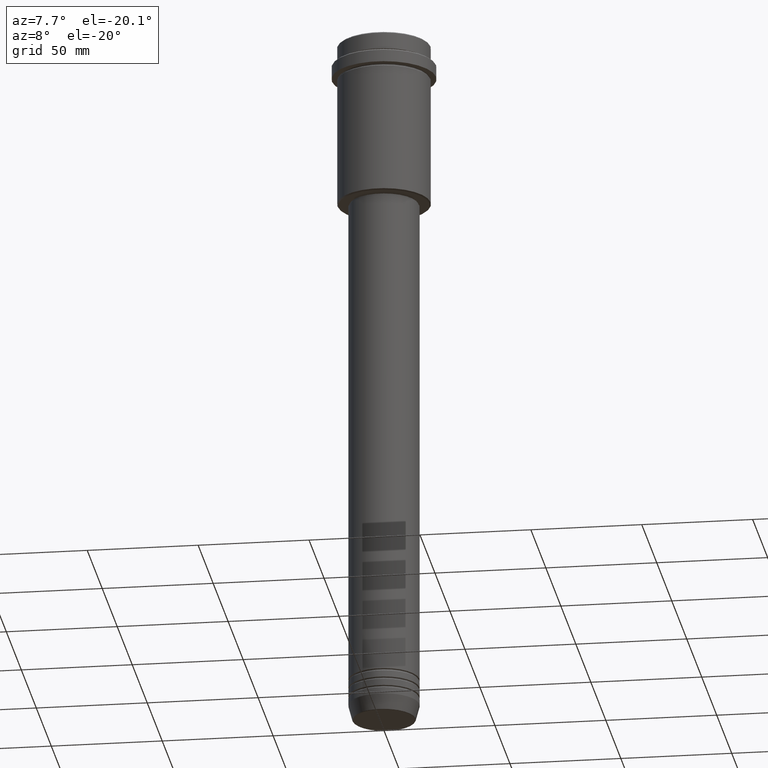
[diagram: clean part render]
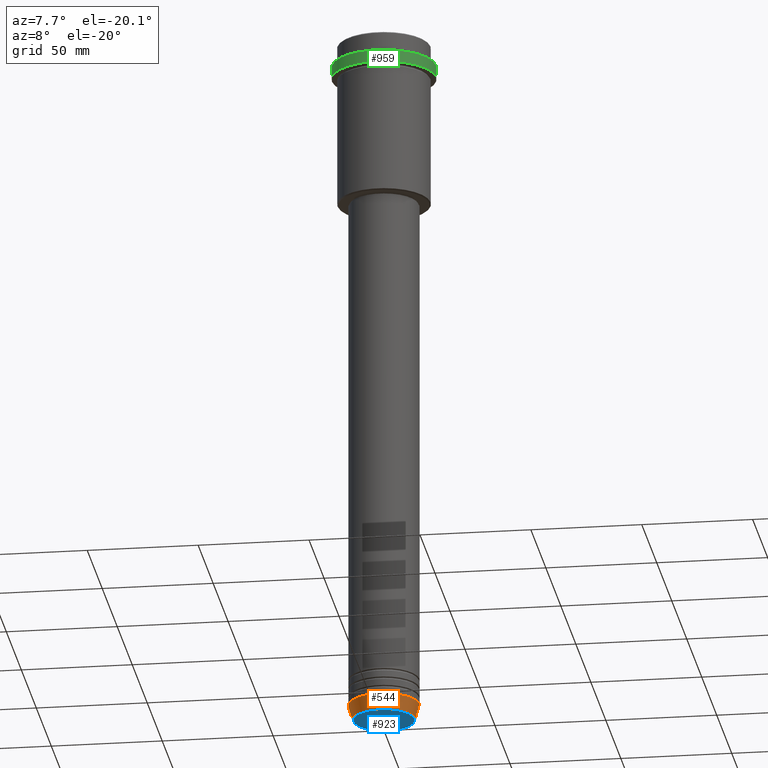
[diagram: same view with three faces highlighted in distinct colors, each labeled with its STEP entity id]
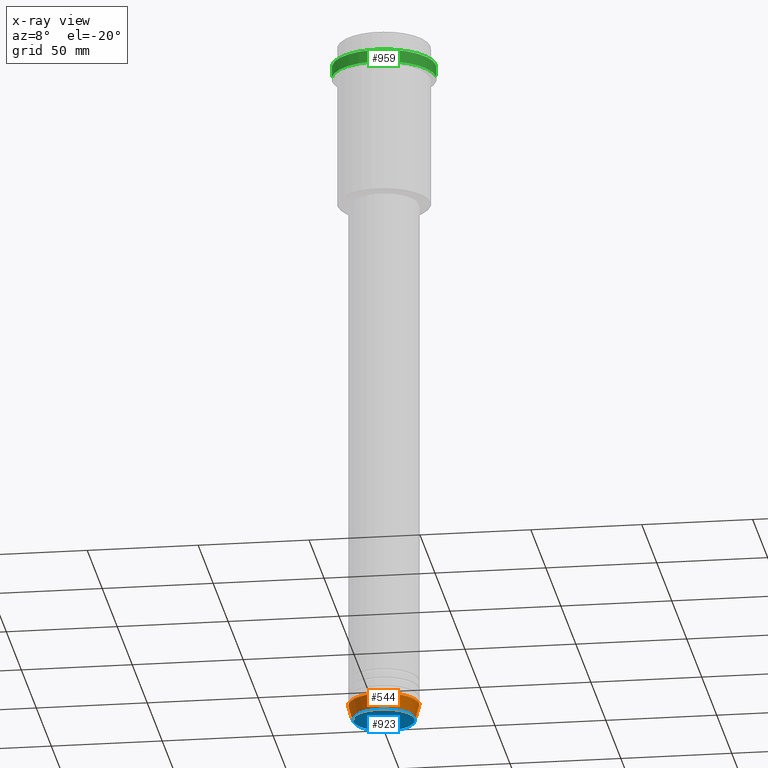
[diagram: x-ray of the same camera — body ghosted, the three highlighted faces saturated]
A machine part, auxiliary view with three faces highlighted in distinct colors.
The next image is the same camera in x-ray (body ghosted, the three faces saturated) — at least one of them is partly hidden behind the body in this view.
Their STEP definitions:

[orange] entity #544 — the highlighted conical surface has half-angle 15 deg.
#44 = EDGE_CURVE ( 'NONE', #805, #168, #133, .T. ) ;
#78 = CARTESIAN_POINT ( 'NONE',  ( 0.000000000000000000, 0.000000000000000000, -313.0000000000000000 ) ) ;
#115 = ORIENTED_EDGE ( 'NONE', *, *, #44, .F. ) ;
#131 = CARTESIAN_POINT ( 'NONE',  ( 16.00000000000000000, 0.000000000000000000, -313.0000000000000000 ) ) ;
#133 = LINE ( 'NONE', #1348, #460 ) ;
#157 = DIRECTION ( 'NONE',  ( 1.000000000000000000, 0.000000000000000000, 0.000000000000000000 ) ) ;
#168 = VERTEX_POINT ( 'NONE', #810 ) ;
#212 = CONICAL_SURFACE ( 'NONE', #347, 16.00000000000000000, 0.2617993877991500740 ) ;
#273 = VERTEX_POINT ( 'NONE', #131 ) ;
#347 = AXIS2_PLACEMENT_3D ( 'NONE', #78, #1416, #412 ) ;
#356 = CARTESIAN_POINT ( 'NONE',  ( 0.000000000000000000, 0.000000000000000000, -313.0000000000000000 ) ) ;
#381 = DIRECTION ( 'NONE',  ( -0.000000000000000000, -0.000000000000000000, 1.000000000000000000 ) ) ;
#389 = EDGE_CURVE ( 'NONE', #168, #273, #417, .T. ) ;
#412 = DIRECTION ( 'NONE',  ( 1.000000000000000000, 0.000000000000000000, 0.000000000000000000 ) ) ;
#417 = CIRCLE ( 'NONE', #517, 16.00000000000000000 ) ;
#429 = CARTESIAN_POINT ( 'NONE',  ( 0.000000000000000000, 0.000000000000000000, -319.6294095225512706 ) ) ;
#460 = VECTOR ( 'NONE', #1244, 1000.000000000000000 ) ;
#467 = ORIENTED_EDGE ( 'NONE', *, *, #896, .T. ) ;
#517 = AXIS2_PLACEMENT_3D ( 'NONE', #356, #381, #157 ) ;
#544 = ADVANCED_FACE ( 'NONE', ( #1184 ), #212, .T. ) ;
#653 = EDGE_LOOP ( 'NONE', ( #115, #467, #852, #915 ) ) ;
#674 = DIRECTION ( 'NONE',  ( 1.000000000000000000, 0.000000000000000000, 0.000000000000000000 ) ) ;
#753 = VERTEX_POINT ( 'NONE', #1280 ) ;
#805 = VERTEX_POINT ( 'NONE', #1052 ) ;
#810 = CARTESIAN_POINT ( 'NONE',  ( -16.00000000000000000, 1.959434878635765131E-15, -313.0000000000000000 ) ) ;
#846 = DIRECTION ( 'NONE',  ( 0.2588190451025213501, 0.000000000000000000, 0.9659258262890680902 ) ) ;
#851 = CARTESIAN_POINT ( 'NONE',  ( 16.00000000000000000, 0.000000000000000000, -313.0000000000000000 ) ) ;
#852 = ORIENTED_EDGE ( 'NONE', *, *, #1376, .T. ) ;
#896 = EDGE_CURVE ( 'NONE', #805, #753, #1406, .T. ) ;
#915 = ORIENTED_EDGE ( 'NONE', *, *, #389, .F. ) ;
#1052 = CARTESIAN_POINT ( 'NONE',  ( -14.22365507213718772, 1.850665122131323337E-15, -319.6294095225512706 ) ) ;
#1064 = AXIS2_PLACEMENT_3D ( 'NONE', #429, #1199, #674 ) ;
#1184 = FACE_OUTER_BOUND ( 'NONE', #653, .T. ) ;
#1199 = DIRECTION ( 'NONE',  ( -0.000000000000000000, -0.000000000000000000, 1.000000000000000000 ) ) ;
#1244 = DIRECTION ( 'NONE',  ( -0.2588190451025213501, 3.169619151431772337E-17, 0.9659258262890680902 ) ) ;
#1280 = CARTESIAN_POINT ( 'NONE',  ( 14.22365507213718772, 0.000000000000000000, -319.6294095225512706 ) ) ;
#1318 = VECTOR ( 'NONE', #846, 1000.000000000000000 ) ;
#1348 = CARTESIAN_POINT ( 'NONE',  ( -16.00000000000000000, 1.959434878635765131E-15, -313.0000000000000000 ) ) ;
#1376 = EDGE_CURVE ( 'NONE', #753, #273, #1388, .T. ) ;
#1388 = LINE ( 'NONE', #851, #1318 ) ;
#1406 = CIRCLE ( 'NONE', #1064, 14.22365507213718772 ) ;
#1416 = DIRECTION ( 'NONE',  ( -0.000000000000000000, -0.000000000000000000, 1.000000000000000000 ) ) ;

[blue] entity #923 — the highlighted planar face has unit normal (0, -0, 1).
#57 = AXIS2_PLACEMENT_3D ( 'NONE', #762, #1380, #209 ) ;
#65 = DIRECTION ( 'NONE',  ( 0.000000000000000000, 0.000000000000000000, -1.000000000000000000 ) ) ;
#77 = PLANE ( 'NONE',  #421 ) ;
#109 = CARTESIAN_POINT ( 'NONE',  ( 0.000000000000000000, 0.000000000000000000, -320.0000000000000000 ) ) ;
#209 = DIRECTION ( 'NONE',  ( 1.000000000000000000, 0.000000000000000000, 0.000000000000000000 ) ) ;
#228 = ORIENTED_EDGE ( 'NONE', *, *, #1262, .T. ) ;
#289 = EDGE_LOOP ( 'NONE', ( #496, #228 ) ) ;
#421 = AXIS2_PLACEMENT_3D ( 'NONE', #109, #883, #447 ) ;
#447 = DIRECTION ( 'NONE',  ( 1.000000000000000000, 0.000000000000000000, 0.000000000000000000 ) ) ;
#496 = ORIENTED_EDGE ( 'NONE', *, *, #1350, .T. ) ;
#762 = CARTESIAN_POINT ( 'NONE',  ( 0.000000000000000000, 0.000000000000000000, -320.0000000000000000 ) ) ;
#883 = DIRECTION ( 'NONE',  ( 0.000000000000000000, -0.000000000000000000, 1.000000000000000000 ) ) ;
#884 = VERTEX_POINT ( 'NONE', #900 ) ;
#900 = CARTESIAN_POINT ( 'NONE',  ( -13.74069215899265828, 1.712322416342415986E-15, -320.0000000000000000 ) ) ;
#911 = CIRCLE ( 'NONE', #57, 13.74069215899265828 ) ;
#923 = ADVANCED_FACE ( 'NONE', ( #1298 ), #77, .F. ) ;
#945 = CARTESIAN_POINT ( 'NONE',  ( 13.74069215899265828, 0.000000000000000000, -320.0000000000000000 ) ) ;
#1058 = CARTESIAN_POINT ( 'NONE',  ( 0.000000000000000000, 0.000000000000000000, -320.0000000000000000 ) ) ;
#1113 = VERTEX_POINT ( 'NONE', #945 ) ;
#1165 = DIRECTION ( 'NONE',  ( 1.000000000000000000, 0.000000000000000000, 0.000000000000000000 ) ) ;
#1262 = EDGE_CURVE ( 'NONE', #884, #1113, #1361, .T. ) ;
#1298 = FACE_OUTER_BOUND ( 'NONE', #289, .T. ) ;
#1350 = EDGE_CURVE ( 'NONE', #1113, #884, #911, .T. ) ;
#1361 = CIRCLE ( 'NONE', #1409, 13.74069215899265828 ) ;
#1380 = DIRECTION ( 'NONE',  ( 0.000000000000000000, 0.000000000000000000, -1.000000000000000000 ) ) ;
#1409 = AXIS2_PLACEMENT_3D ( 'NONE', #1058, #65, #1165 ) ;

[green] entity #959 — the highlighted cylindrical surface (partial cylindrical patch) has radius 23.5 mm, axis along (-0, -0, 1).
#3 = CARTESIAN_POINT ( 'NONE',  ( 0.000000000000000000, 0.000000000000000000, -15.00000000000000000 ) ) ;
#46 = CARTESIAN_POINT ( 'NONE',  ( 0.000000000000000000, 0.000000000000000000, -9.499999999999971578 ) ) ;
#70 = VECTOR ( 'NONE', #827, 1000.000000000000000 ) ;
#101 = ORIENTED_EDGE ( 'NONE', *, *, #1205, .T. ) ;
#252 = DIRECTION ( 'NONE',  ( 1.000000000000000000, 0.000000000000000000, 0.000000000000000000 ) ) ;
#286 = AXIS2_PLACEMENT_3D ( 'NONE', #3, #1183, #983 ) ;
#379 = CIRCLE ( 'NONE', #1025, 23.50000000000000000 ) ;
#402 = CIRCLE ( 'NONE', #286, 23.50000000000000355 ) ;
#408 = EDGE_CURVE ( 'NONE', #941, #1279, #1039, .T. ) ;
#413 = CARTESIAN_POINT ( 'NONE',  ( 23.50000000000000000, 0.000000000000000000, -9.499999999999971578 ) ) ;
#502 = ORIENTED_EDGE ( 'NONE', *, *, #408, .F. ) ;
#519 = EDGE_CURVE ( 'NONE', #950, #628, #944, .T. ) ;
#620 = CARTESIAN_POINT ( 'NONE',  ( -23.50000000000000711, 2.877919977996281109E-15, -15.00000000000000000 ) ) ;
#628 = VERTEX_POINT ( 'NONE', #413 ) ;
#733 = DIRECTION ( 'NONE',  ( -0.000000000000000000, -0.000000000000000000, 1.000000000000000000 ) ) ;
#793 = AXIS2_PLACEMENT_3D ( 'NONE', #1213, #1209, #1370 ) ;
#807 = DIRECTION ( 'NONE',  ( 0.000000000000000000, 0.000000000000000000, -1.000000000000000000 ) ) ;
#827 = DIRECTION ( 'NONE',  ( -0.000000000000000000, -0.000000000000000000, 1.000000000000000000 ) ) ;
#853 = CYLINDRICAL_SURFACE ( 'NONE', #793, 23.50000000000000000 ) ;
#927 = CARTESIAN_POINT ( 'NONE',  ( 23.50000000000000355, 0.000000000000000000, -15.00000000000000000 ) ) ;
#941 = VERTEX_POINT ( 'NONE', #620 ) ;
#944 = LINE ( 'NONE', #969, #1332 ) ;
#950 = VERTEX_POINT ( 'NONE', #927 ) ;
#959 = ADVANCED_FACE ( 'NONE', ( #1395 ), #853, .T. ) ;
#969 = CARTESIAN_POINT ( 'NONE',  ( 23.50000000000000000, 0.000000000000000000, 0.000000000000000000 ) ) ;
#983 = DIRECTION ( 'NONE',  ( 1.000000000000000000, 0.000000000000000000, 0.000000000000000000 ) ) ;
#1025 = AXIS2_PLACEMENT_3D ( 'NONE', #46, #807, #252 ) ;
#1039 = LINE ( 'NONE', #1240, #70 ) ;
#1040 = ORIENTED_EDGE ( 'NONE', *, *, #519, .T. ) ;
#1094 = EDGE_CURVE ( 'NONE', #941, #950, #402, .T. ) ;
#1183 = DIRECTION ( 'NONE',  ( -0.000000000000000000, -0.000000000000000000, 1.000000000000000000 ) ) ;
#1186 = CARTESIAN_POINT ( 'NONE',  ( -23.50000000000000000, 2.877919977996280320E-15, -9.499999999999971578 ) ) ;
#1188 = EDGE_LOOP ( 'NONE', ( #502, #1255, #1040, #101 ) ) ;
#1205 = EDGE_CURVE ( 'NONE', #628, #1279, #379, .T. ) ;
#1209 = DIRECTION ( 'NONE',  ( -0.000000000000000000, -0.000000000000000000, 1.000000000000000000 ) ) ;
#1213 = CARTESIAN_POINT ( 'NONE',  ( 0.000000000000000000, 0.000000000000000000, 0.000000000000000000 ) ) ;
#1240 = CARTESIAN_POINT ( 'NONE',  ( -23.50000000000000000, 2.877919977996280320E-15, 0.000000000000000000 ) ) ;
#1255 = ORIENTED_EDGE ( 'NONE', *, *, #1094, .T. ) ;
#1279 = VERTEX_POINT ( 'NONE', #1186 ) ;
#1332 = VECTOR ( 'NONE', #733, 1000.000000000000000 ) ;
#1370 = DIRECTION ( 'NONE',  ( 1.000000000000000000, 0.000000000000000000, 0.000000000000000000 ) ) ;
#1395 = FACE_OUTER_BOUND ( 'NONE', #1188, .T. ) ;